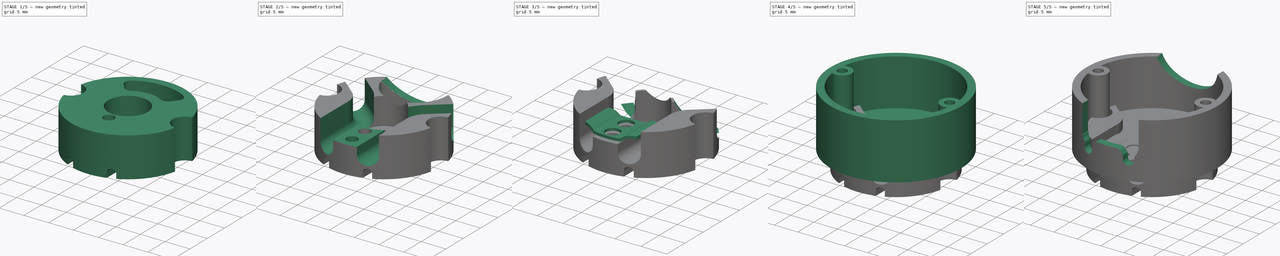
[diagram: build sequence overview — one tinted view per stage of 5, left to right]
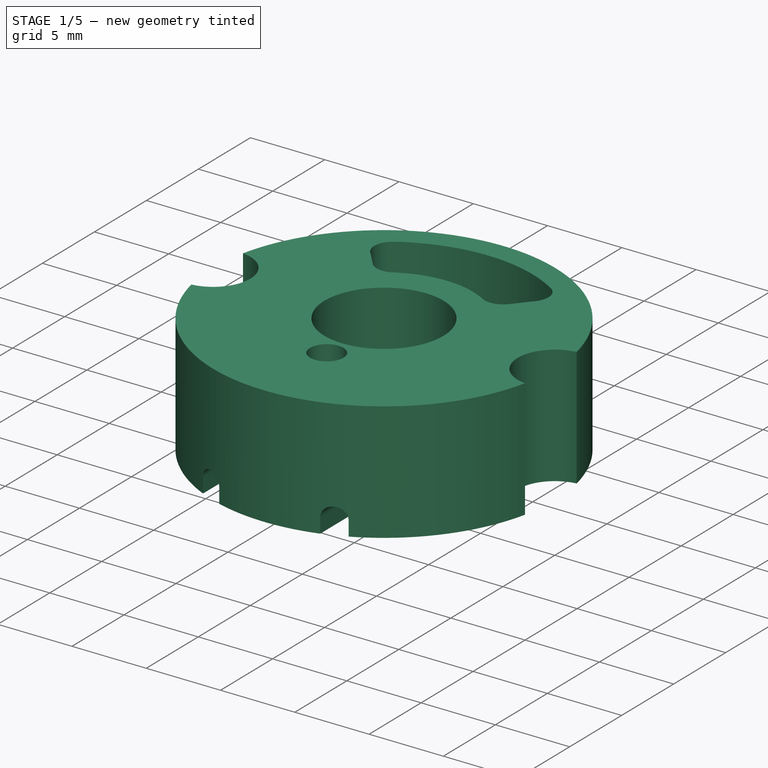
[diagram: stage 1 of 5 — iso view after this stage's code; geometry added in this stage tinted green]
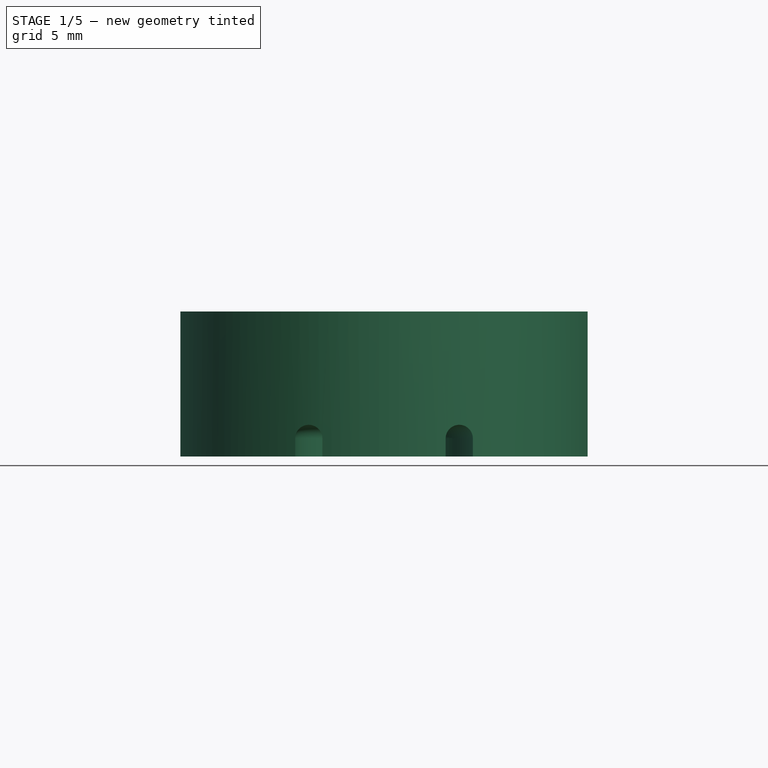
[diagram: stage 1 of 5 — front view after this stage's code; geometry added in this stage tinted green]
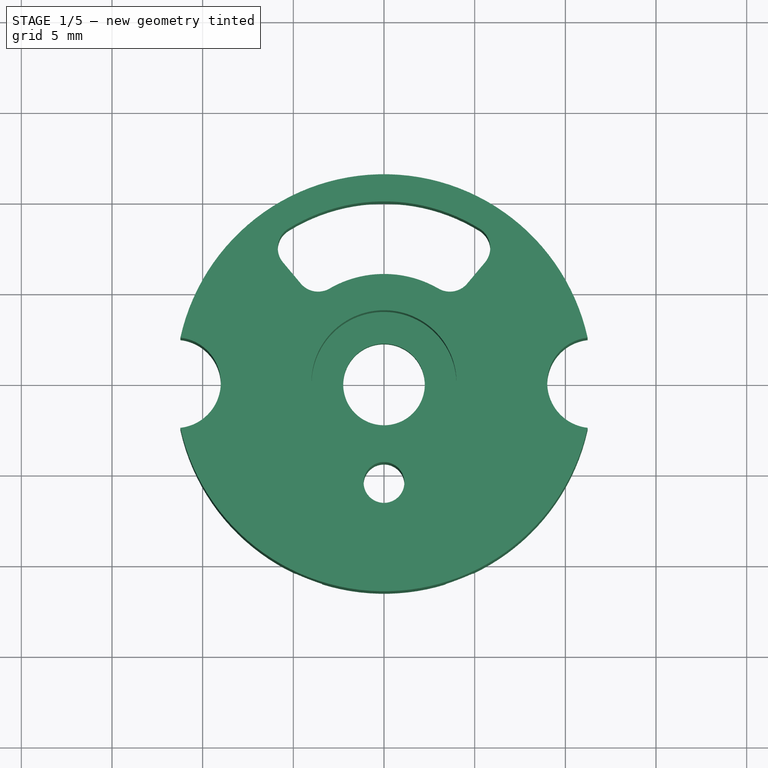
[diagram: stage 1 of 5 — top view after this stage's code; geometry added in this stage tinted green]
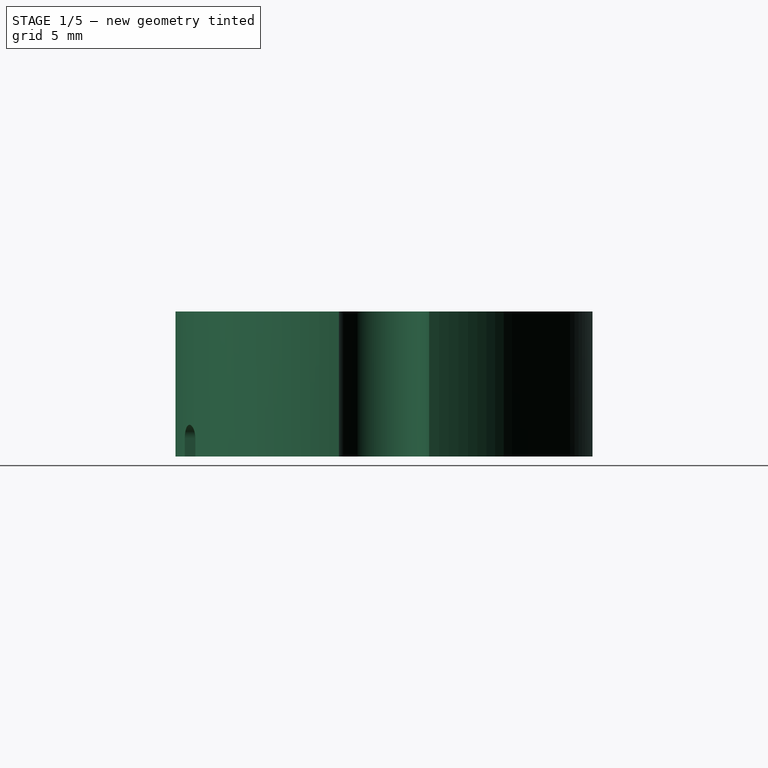
[diagram: stage 1 of 5 — right view after this stage's code; geometry added in this stage tinted green]
FCSTD DOCUMENT  (FreeCAD 0.20R29603 (Git))
Label: AKG K171 mkII Replacement arc holder
License: All rights reserved
LicenseURL: http://en.wikipedia.org/wiki/All_rights_reserved
objects: Sketcher::SketchObject×24, PartDesign::Pocket×13, PartDesign::Plane×5, PartDesign::Pad×4, PartDesign::Body×3, PartDesign::SubtractivePipe×3, PartDesign::Mirrored×2, PartDesign::Fillet×2, PartDesign::Groove×1
note: 80 computed .brp shape members not serialized (recipe doc carries the construction recipe); baked Part::Feature solids carry a one-line shape summary decoded from their .brp

FEATURE [PartDesign::Body] Body  label="Holder lower interface (dummy piece)"
  Group = -> [Sketch,Pad,Sketch001,Pocket,Sketch002,Pocket001,Sketch003,Pad001,Sketch004,Pocket002,Sketch005,Pocket003,Sketch006,Pocket004,Sketch007,Pocket005,Mirrored,Fillet]
  Origin = -> Origin
  Placement = pos=(0,0,-6) rot=(0,0,1;0rad)
  Tip = -> Fillet
FEATURE [Sketcher::SketchObject] Sketch008
  FullyConstrained = true
  MapMode = 5
  Support = -> [XY_Plane001]
  sketch-geometry (2):
    g0: Circle CenterX=0 CenterY=0 CenterZ=0 NormalX=0 NormalY=0 NormalZ=1 AngleXU=0 Radius=11.5
    g1: Circle CenterX=0 CenterY=0 CenterZ=0 NormalX=0 NormalY=0 NormalZ=1 AngleXU=0 Radius=2.25
  constraints (4):
    c: Coincident(g0,g-1)
    c: Diameter(g0) = 23
    c: Coincident(g1,g0)
    c: Diameter(g1) = 4.5
FEATURE [PartDesign::Pad] Pad002  label="MainBodyExtrusion"
  Direction = (0,0,1)
  Length = 8
  Length2 = 10
  Profile = -> Sketch008
  ReferenceAxis = -> Sketch008 [N_Axis]
  Type = 0
FEATURE [Sketcher::SketchObject] Sketch009
  FullyConstrained = true
  MapMode = 5
  Placement = pos=(0,0,8) rot=(0,0,1;0rad)
  Support = -> [Pad002]
  sketch-geometry (2):
    g0: Circle CenterX=11.5 CenterY=0 CenterZ=0 NormalX=0 NormalY=0 NormalZ=1 AngleXU=0 Radius=2.5
    g1: Circle CenterX=-11.5 CenterY=0 CenterZ=0 NormalX=0 NormalY=0 NormalZ=1 AngleXU=0 Radius=2.5
  constraints (6):
    c: PointOnObject(g0,g-1)
    c: DistanceX(g-1,g0) = 11.5
    c: Diameter(g0) = 5
    c: Diameter(g1) = 5
    c: PointOnObject(g1,g-1)
    c: DistanceX(g1,g-1) = 11.5
FEATURE [PartDesign::Pocket] Pocket006  label="SideLockersPocket"
  BaseFeature = -> Pad002
  Direction = (0,0,-1)
  Length = 10
  Length2 = 5
  Profile = -> Sketch009
  ReferenceAxis = -> Sketch009 [N_Axis]
  Type = 0
FEATURE [Sketcher::SketchObject] Sketch010
  FullyConstrained = true
  MapMode = 5
  Placement = pos=(0,0,8) rot=(0,0,1;0rad)
  Support = -> [Pocket006]
  sketch-geometry (1):
    g0: Circle CenterX=0 CenterY=0 CenterZ=0 NormalX=0 NormalY=0 NormalZ=1 AngleXU=0 Radius=4
  constraints (2):
    c: Coincident(g0,g-1)
    c: Diameter(g0) = 8
FEATURE [PartDesign::Pocket] Pocket007  label="MainScrewPocket"
  BaseFeature = -> Pocket006
  Direction = (0,0,-1)
  Length = 5.5
  Length2 = 5
  Profile = -> Sketch010
  ReferenceAxis = -> Sketch010 [N_Axis]
  Type = 0
FEATURE [Sketcher::SketchObject] Sketch012
  FullyConstrained = false
  MapMode = 5
  Support = -> [XY_Plane001]
  sketch-geometry (13):
    g0: Circle CenterX=0 CenterY=-5.5 CenterZ=0 NormalX=0 NormalY=0 NormalZ=1 AngleXU=0 Radius=1.125
    g1: ArcOfCircle CenterX=0 CenterY=0 CenterZ=0 NormalX=0 NormalY=0 NormalZ=1 AngleXU=0 Radius=10 StartAngle=1.01601 EndAngle=2.12558
    g2: ArcOfCircle CenterX=0 CenterY=0 CenterZ=0 NormalX=0 NormalY=0 NormalZ=1 AngleXU=0 Radius=6 StartAngle=1.04594 EndAngle=2.09565
    g3: LineSegment StartX=-5.5667 StartY=6.63414 StartZ=0 EndX=-4.59042 EndY=5.47065 EndZ=0
    g4: LineSegment StartX=4.59042 StartY=5.47065 StartZ=0 EndX=5.5667 EndY=6.63414 EndZ=0
    g5: LineSegment StartX=-13.3216 StartY=15.8761 StartZ=0 EndX=0 EndY=0 EndZ=0
    g6: LineSegment StartX=0 StartY=0 StartZ=0 EndX=11.7863 EndY=14.0463 EndZ=0
    g7: ArcOfCircle CenterX=-4.60915 CenterY=7.43762 CenterZ=0 NormalX=0 NormalY=0 NormalZ=1 AngleXU=0 Radius=1.25 StartAngle=2.12558 EndAngle=3.83972
    g8: ArcOfCircle CenterX=4.60915 CenterY=7.43762 CenterZ=0 NormalX=0 NormalY=0 NormalZ=1 AngleXU=0 Radius=1.25 StartAngle=5.58505 EndAngle=7.2992
    g9: ArcOfCircle CenterX=3.63287 CenterY=6.27414 CenterZ=0 NormalX=0 NormalY=0 NormalZ=1 AngleXU=0 Radius=1.25 StartAngle=4.18754 EndAngle=5.58505
    g10: ArcOfCircle CenterX=-3.63287 CenterY=6.27414 CenterZ=0 NormalX=0 NormalY=0 NormalZ=1 AngleXU=0 Radius=1.25 StartAngle=3.83972 EndAngle=5.23724
    g11: GeomPoint X=0 Y=6 Z=0
    g12: GeomPoint X=0 Y=10 Z=0
  constraints (31):
    c: PointOnObject(g0,g-2)
    c: Diameter(g0) = 2.25
    c: Coincident(g1,g-1)
    c: Coincident(g2,g1)
    c: Coincident(g5,g1)
    c: Coincident(g6,g1)
    c: DistanceY(g0,g1) = 5.5
    c: Tangent(g1,g7) = -1.5708
    c: Tangent(g3,g7) = -1.5708
    c: Tangent(g1,g8) = -1.5708
    c: Tangent(g4,g8) = -1.5708
    c: Tangent(g2,g9) = 1.5708
    c: Tangent(g4,g9) = -1.5708
    c: Tangent(g3,g10) = -1.5708
    c: Tangent(g2,g10) = 1.5708
    c: Parallel(g3,g5)
    c: PointOnObject(g3,g5)
    c: PointOnObject(g4,g6)
    c: PointOnObject(g4,g6)
    c: Angle(g6,g-2) = 0.698132
    c: Angle(g-2,g5) = 0.698132
    c: Diameter(g8) = 2.5
    c: Diameter(g9) = 2.5
    c: Diameter(g10) = 2.5
    c: Diameter(g7) = 2.5
    c: PointOnObject(g11,g-2)
    c: PointOnObject(g12,g-2)
    c: PointOnObject(g12,g1)
    c: PointOnObject(g11,g2)
    c: DistanceY(g11,g12) = 4
    c: DistanceY(g1,g11) = 6
FEATURE [PartDesign::Pocket] Pocket009  label="WiresSocket"
  BaseFeature = -> Pocket007
  Direction = (0,0,-1)
  Length = 12
  Length2 = 5
  Profile = -> Sketch012
  ReferenceAxis = -> Sketch012 [N_Axis]
  Reversed = true
  Type = 0
FEATURE [Sketcher::SketchObject] Sketch016  label="Substractive path"
  FullyConstrained = true
  MapMode = 5
  Support = -> [XY_Plane001]
  sketch-geometry (4):
    g0: ArcOfCircle CenterX=0 CenterY=0 CenterZ=0 NormalX=0 NormalY=0 NormalZ=1 AngleXU=0 Radius=4 StartAngle=0 EndAngle=3.14159
    g1: LineSegment StartX=4 StartY=0 StartZ=0 EndX=4 EndY=-13 EndZ=0
    g2: LineSegment StartX=-4 StartY=2.883e-13 StartZ=0 EndX=-4 EndY=-13 EndZ=0
    g3: LineSegment StartX=4 StartY=-13 StartZ=0 EndX=-4 EndY=-13 EndZ=0
  constraints (10):
    c: Coincident(g-1,g0)
    c: Coincident(g3,g1)
    c: Coincident(g2,g3)
    c: Perpendicular(g1,g3)
    c: Perpendicular(g2,g3)
    c: Diameter(g0) = 8
    c: Tangent(g2,g0) = -1.5708
    c: Tangent(g1,g0) = 1.5708
    c: Vertical(g1)
    c: DistanceY(g1,g0) = 13
FEATURE [Sketcher::SketchObject] Sketch019
  FullyConstrained = true
  MapMode = 5
  Support = -> [XY_Plane001]
  sketch-geometry (1):
    g0: Circle CenterX=0 CenterY=-9.2 CenterZ=0 NormalX=0 NormalY=0 NormalZ=1 AngleXU=0 Radius=1.125
  constraints (3):
    c: PointOnObject(g0,g-2)
    c: Diameter(g0) = 2.25
    c: DistanceY(g0,g-1) = 9.2
FEATURE [PartDesign::Plane] DatumPlane  label="Cut profile plane"
  AttachmentOffset = pos=(0,0,13) rot=(0,0,1;0rad)
  Length = 60
  MapMode = 5
  Placement = pos=(0,-13,-2.9e-15) rot=(1,0,0;1.5708rad)
  ResizeMode = 0
  Support = -> [XZ_Plane001]
  Width = 60
FEATURE [Sketcher::SketchObject] Sketch018  label="Cut profile"
  ExternalGeometry = -> [Sketch016]
  FullyConstrained = true
  MapMode = 5
  Placement = pos=(0,-13,-2.9e-15) rot=(1,0,0;1.5708rad)
  Support = -> [DatumPlane]
  sketch-geometry (4):
    g0: ArcOfCircle CenterX=-4.15 CenterY=1 CenterZ=0 NormalX=0 NormalY=0 NormalZ=1 AngleXU=0 Radius=0.75 StartAngle=-1.90346e-11 EndAngle=3.14159
    g1: ArcOfCircle CenterX=-4.15 CenterY=-2 CenterZ=0 NormalX=0 NormalY=0 NormalZ=1 AngleXU=0 Radius=0.75 StartAngle=3.14159 EndAngle=6.28319
    g2: LineSegment StartX=-4.9 StartY=1 StartZ=0 EndX=-4.9 EndY=-2 EndZ=0
    g3: LineSegment StartX=-3.4 StartY=-2 StartZ=0 EndX=-3.4 EndY=1 EndZ=0
  constraints (10):
    c: Tangent(g0,g2) = -1.5708
    c: Tangent(g2,g1) = -1.5708
    c: Tangent(g1,g3) = -1.5708
    c: Tangent(g3,g0) = -1.5708
    c: Equal(g0,g1)
    c: Vertical(g2)
    c: DistanceY(g-3,g0) = 1
    c: Diameter(g0) = 1.5
    c: DistanceX(g0,g-1) = 4.15
    c: DistanceY(g3,g3) = 3
FEATURE [PartDesign::SubtractivePipe] SubtractivePipe  label="ElasticBandGroove"
  AuxilleryCurvelinear = true
  AuxillerySpineTangent = false
  BaseFeature = -> Pocket009
  Binormal = (0,0,0)
  Mode = 0
  Profile = -> Sketch018
  Spine = -> Sketch016
  SpineTangent = false
  Transformation = 0
  Transition = 0
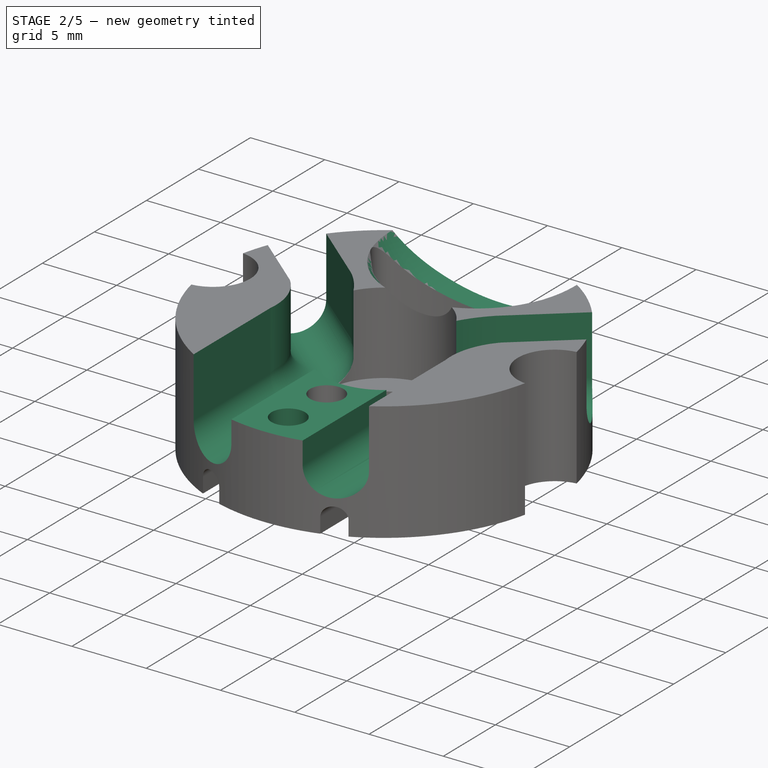
[diagram: stage 2 of 5 — iso view after this stage's code; geometry added in this stage tinted green]
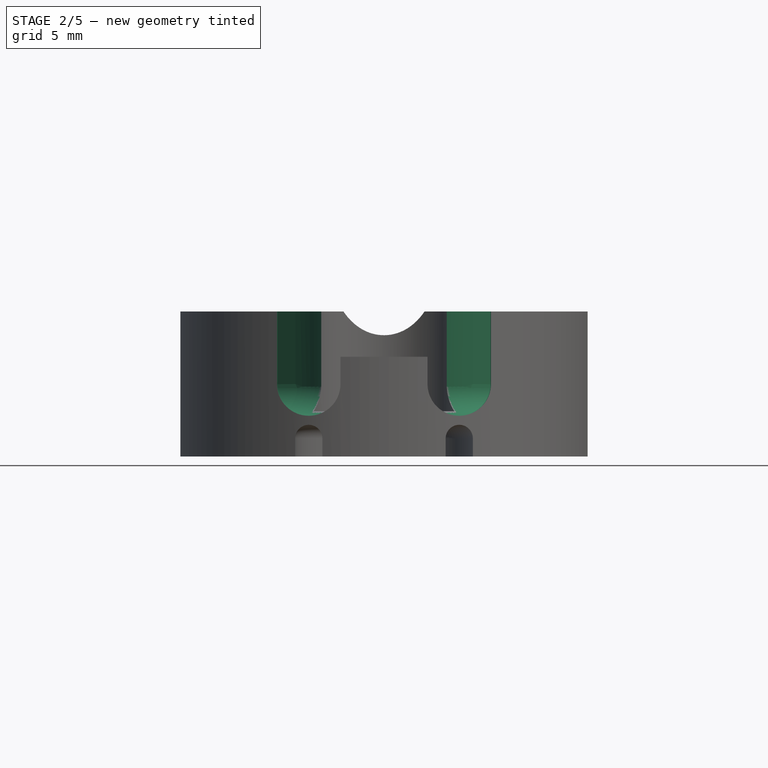
[diagram: stage 2 of 5 — front view after this stage's code; geometry added in this stage tinted green]
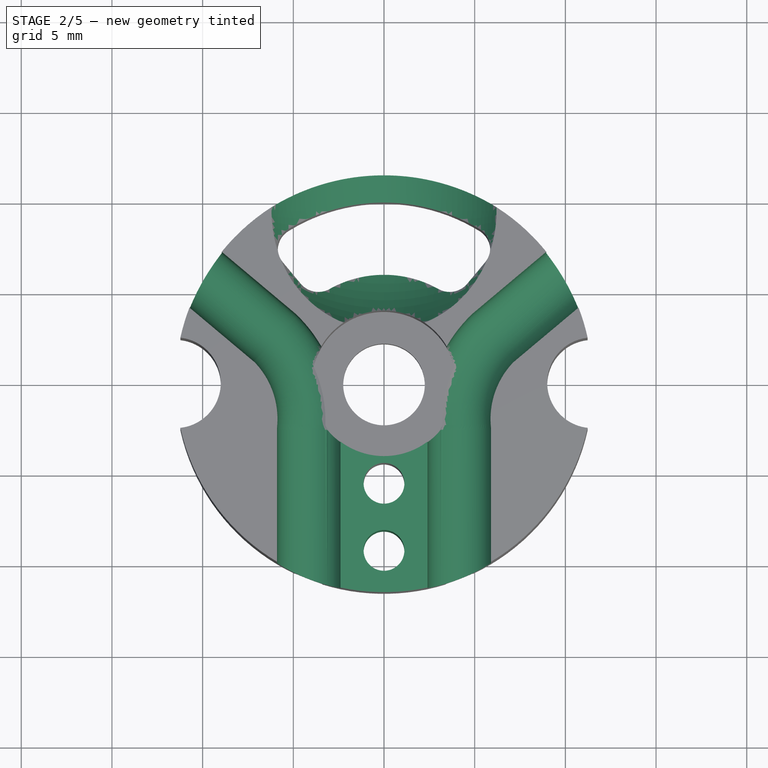
[diagram: stage 2 of 5 — top view after this stage's code; geometry added in this stage tinted green]
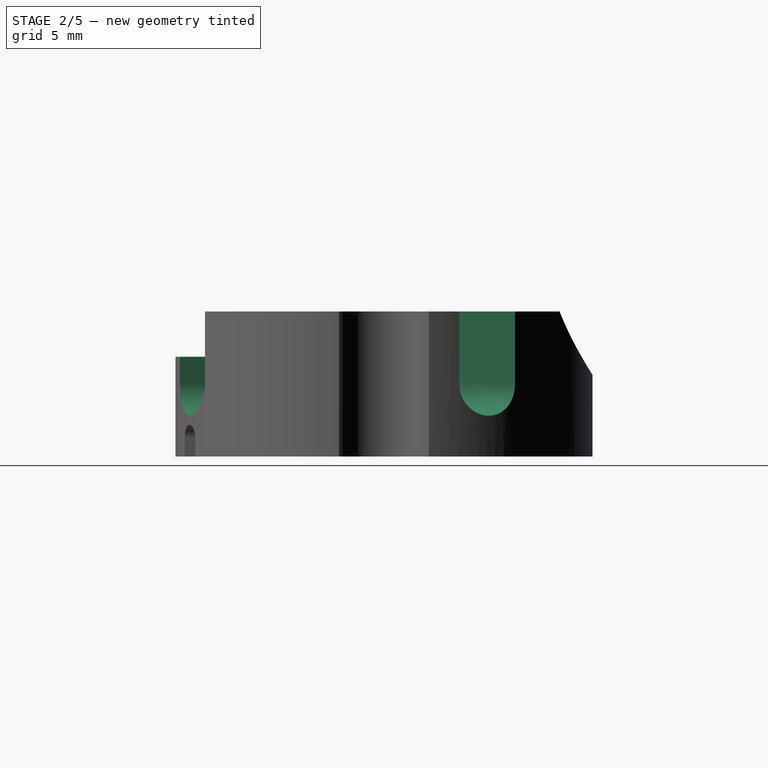
[diagram: stage 2 of 5 — right view after this stage's code; geometry added in this stage tinted green]
FEATURE [PartDesign::Pocket] Pocket018  label="ClampHole"
  BaseFeature = -> SubtractivePipe
  Direction = (0,0,-1)
  Length = 20
  Length2 = 5
  Profile = -> Sketch019
  ReferenceAxis = -> Sketch019 [N_Axis]
  Reversed = true
  Type = 0
FEATURE [Sketcher::SketchObject] Sketch030
  FullyConstrained = true
  MapMode = 5
  Placement = pos=(0,-13,-2.9e-15) rot=(1,0,0;1.5708rad)
  Support = -> [DatumPlane]
  sketch-geometry (5):
    g0: ArcOfCircle CenterX=-4.15 CenterY=4 CenterZ=0 NormalX=0 NormalY=0 NormalZ=1 AngleXU=0 Radius=1.75 StartAngle=3.14159 EndAngle=6.28319
    g1: LineSegment StartX=-5.9 StartY=9 StartZ=0 EndX=-2.4 EndY=9 EndZ=0
    g2: LineSegment StartX=-2.4 StartY=9 StartZ=0 EndX=-2.4 EndY=4 EndZ=0
    g3: LineSegment StartX=-2.4 StartY=4 StartZ=0 EndX=-5.9 EndY=4 EndZ=0
    g4: LineSegment StartX=-5.9 StartY=4 StartZ=0 EndX=-5.9 EndY=9 EndZ=0
  constraints (15):
    c: Diameter(g0) = 3.5
    c: DistanceY(g-1,g0) = 4
    c: DistanceX(g0,g-1) = 4.15
    c: Coincident(g1,g2)
    c: Coincident(g2,g3)
    c: Coincident(g3,g4)
    c: Coincident(g4,g1)
    c: Horizontal(g1)
    c: Horizontal(g3)
    c: Vertical(g2)
    c: Vertical(g4)
    c: PointOnObject(g0,g3)
    c: DistanceY(g2,g2) = 5
    c: Coincident(g0,g2)
    c: Coincident(g0,g3)
FEATURE [Sketcher::SketchObject] Sketch032
  FullyConstrained = true
  MapMode = 5
  Support = -> [XY_Plane001]
  sketch-geometry (3):
    g0: LineSegment StartX=-4.15 StartY=-12.5 StartZ=0 EndX=-4.15 EndY=-2 EndZ=0
    g1: LineSegment StartX=-6.38258 StartY=2.78778 StartZ=0 EndX=-12 EndY=7.50135 EndZ=0
    g2: ArcOfCircle CenterX=-10.4 CenterY=-2 CenterZ=0 NormalX=0 NormalY=0 NormalZ=1 AngleXU=0 Radius=6.25 StartAngle=0 EndAngle=0.872665
  constraints (9):
    c: Vertical(g0)
    c: DistanceX(g0,g-1) = 4.15
    c: Angle(g1,g0) = 2.26893
    c: Tangent(g1,g2) = -1.5708
    c: Tangent(g0,g2) = -1.5708
    c: Diameter(g2) = 12.5
    c: DistanceY(g0,g-1) = 12.5
    c: DistanceY(g0,g0) = 10.5
    c: DistanceX(g1,g-1) = 12
FEATURE [PartDesign::SubtractivePipe] SubtractivePipe001
  AuxilleryCurvelinear = true
  AuxillerySpineTangent = false
  BaseFeature = -> Pocket018
  Binormal = (0,0,0)
  Mode = 0
  Profile = -> Sketch030
  Spine = -> Sketch032 [Edge1,Edge2,Edge3]
  SpineTangent = false
  Transformation = 0
  Transition = 0
FEATURE [PartDesign::Mirrored] Mirrored001
  BaseFeature = -> SubtractivePipe001
  MirrorPlane = -> Sketch030 [V_Axis]
  Originals = -> [SubtractivePipe001]
FEATURE [Sketcher::SketchObject] Sketch033  label="SubstractivePath"
  FullyConstrained = true
  MapMode = 5
  Placement = pos=(0,0,0) rot=(0.57735,0.57735,0.57735;2.0944rad)
  Support = -> [YZ_Plane001]
  sketch-geometry (3):
    g0: LineSegment StartX=9.5 StartY=5 StartZ=0 EndX=15 EndY=5 EndZ=0
    g1: LineSegment StartX=2 StartY=18 StartZ=0 EndX=2 EndY=12.5 EndZ=0
    g2: ArcOfCircle CenterX=9.5 CenterY=12.5 CenterZ=0 NormalX=0 NormalY=0 NormalZ=1 AngleXU=0 Radius=7.5 StartAngle=3.14159 EndAngle=4.71239
  constraints (9):
    c: Horizontal(g0)
    c: Vertical(g1)
    c: Tangent(g2,g0) = -1.5708
    c: Tangent(g2,g1) = -1.5708
    c: DistanceX(g-1,g1) = 2
    c: DistanceY(g-1,g0) = 5
    c: Diameter(g2) = 15
    c: DistanceY(g-1,g1) = 18
    c: DistanceX(g-1,g0) = 15
FEATURE [PartDesign::Plane] DatumPlane001
  AttachmentOffset = pos=(0,0,-15) rot=(0,0,1;0rad)
  Length = 60
  MapMode = 5
  Placement = pos=(0,15,3.3e-15) rot=(1,0,0;1.5708rad)
  ResizeMode = 0
  Support = -> [XZ_Plane001]
  Width = 60
FEATURE [Sketcher::SketchObject] Sketch034  label="SweptHole"
  FullyConstrained = true
  MapMode = 5
  Placement = pos=(0,15,3.3e-15) rot=(1,0,0;1.5708rad)
  Support = -> [DatumPlane001]
  sketch-geometry (1):
    g0: Circle CenterX=0 CenterY=11.75 CenterZ=0 NormalX=0 NormalY=0 NormalZ=1 AngleXU=0 Radius=7.25
  constraints (3):
    c: PointOnObject(g0,g-2)
    c: Diameter(g0) = 14.5
    c: DistanceY(g-1,g0) = 11.75
FEATURE [PartDesign::SubtractivePipe] SubtractivePipe002
  AuxilleryCurvelinear = true
  AuxillerySpineTangent = false
  BaseFeature = -> Mirrored001
  Binormal = (0,0,0)
  Mode = 0
  Profile = -> Sketch034 [Edge1]
  Spine = -> Sketch033
  SpineTangent = false
  Transformation = 0
  Transition = 0
FEATURE [PartDesign::Plane] DatumPlane002  label="TopPlane"
  AttachmentOffset = pos=(0,0,10) rot=(0,0,1;0rad)
  Length = 60
  MapMode = 5
  Placement = pos=(0,0,10) rot=(0,0,1;0rad)
  ResizeMode = 0
  Support = -> [XY_Plane001]
  Width = 60
FEATURE [Sketcher::SketchObject] Sketch035
  FullyConstrained = true
  MapMode = 5
  Placement = pos=(0,0,10) rot=(0,0,1;0rad)
  Support = -> [DatumPlane002]
  sketch-geometry (4):
    g0: LineSegment StartX=-2.75 StartY=-2 StartZ=0 EndX=2.75 EndY=-2 EndZ=0
    g1: LineSegment StartX=2.75 StartY=-2 StartZ=0 EndX=2.75 EndY=-14 EndZ=0
    g2: LineSegment StartX=2.75 StartY=-14 StartZ=0 EndX=-2.75 EndY=-14 EndZ=0
    g3: LineSegment StartX=-2.75 StartY=-14 StartZ=0 EndX=-2.75 EndY=-2 EndZ=0
  constraints (12):
    c: Coincident(g0,g1)
    c: Coincident(g1,g2)
    c: Coincident(g2,g3)
    c: Coincident(g3,g0)
    c: Horizontal(g0)
    c: Horizontal(g2)
    c: Vertical(g1)
    c: Vertical(g3)
    c: DistanceX(g0,g0) = 5.5
    c: DistanceX(g0,g-1) = 2.75
    c: DistanceY(g0,g-1) = 2
    c: DistanceY(g1,g1) = 12
FEATURE [PartDesign::Pocket] Pocket019  label="TopPlatePocket"
  BaseFeature = -> SubtractivePipe002
  Direction = (0,0,-1)
  Length = 4.5
  Length2 = 5
  Profile = -> Sketch035
  ReferenceAxis = -> Sketch035 [N_Axis]
  Type = 0
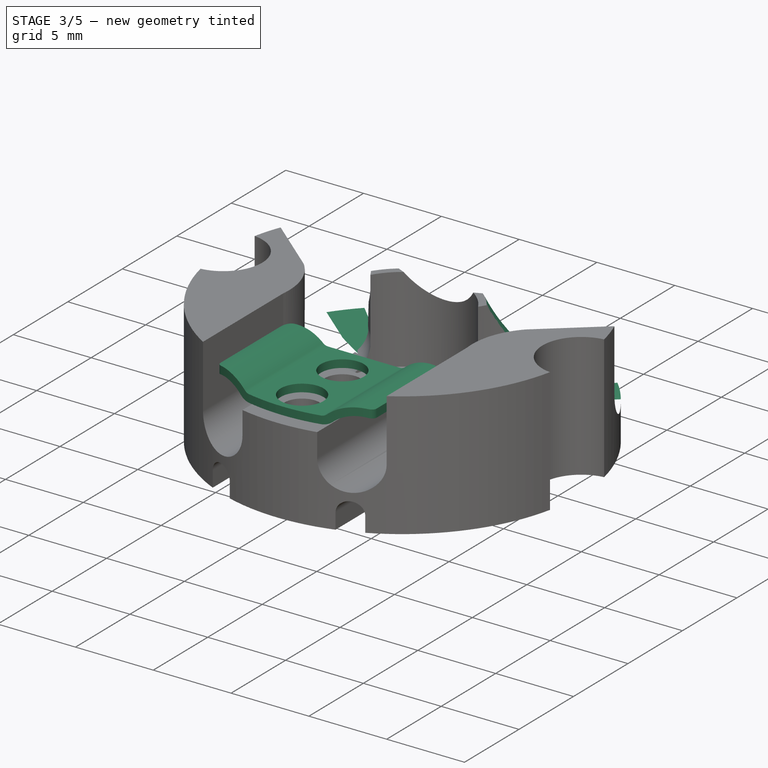
[diagram: stage 3 of 5 — iso view after this stage's code; geometry added in this stage tinted green]
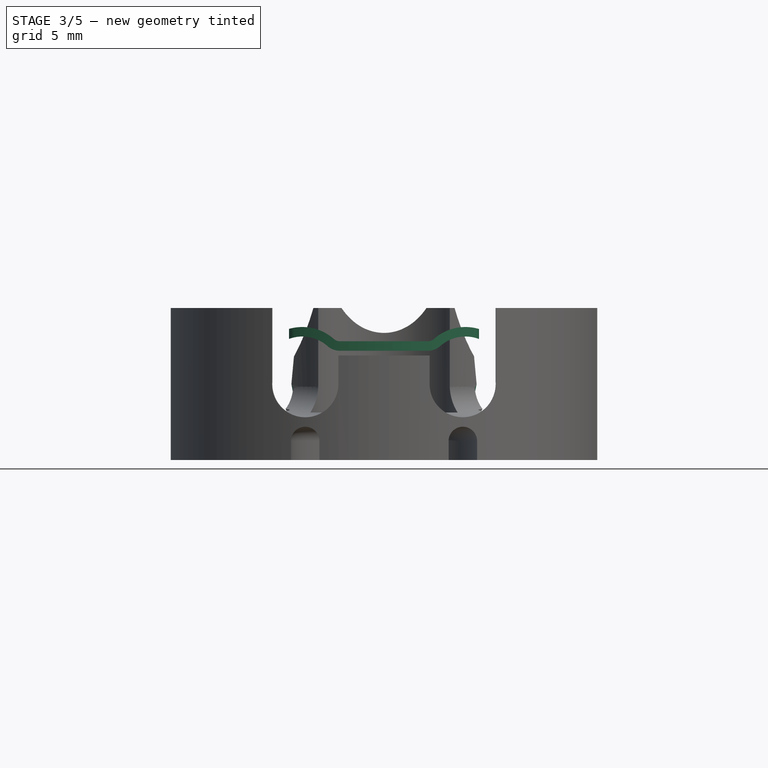
[diagram: stage 3 of 5 — front view after this stage's code; geometry added in this stage tinted green]
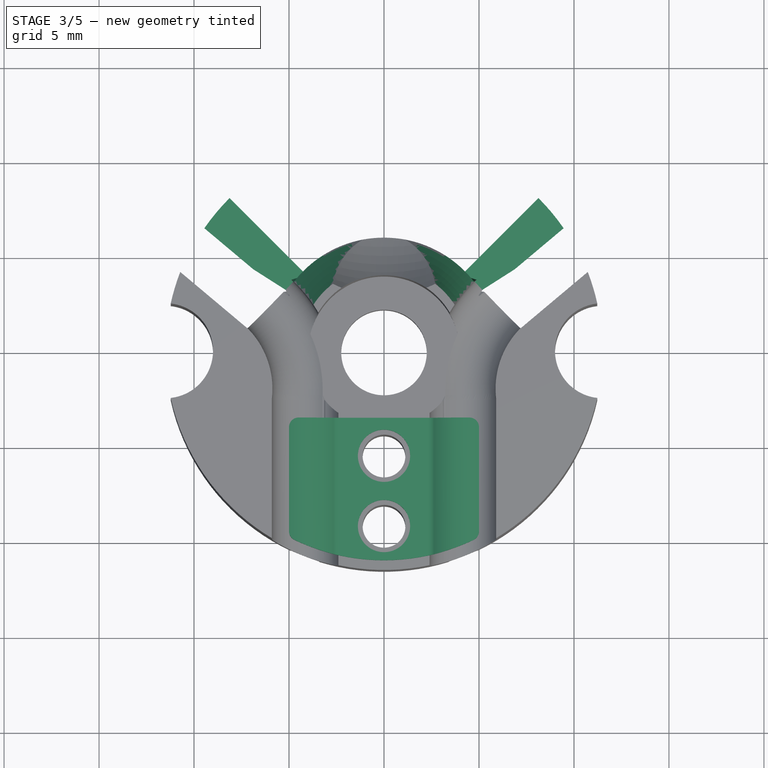
[diagram: stage 3 of 5 — top view after this stage's code; geometry added in this stage tinted green]
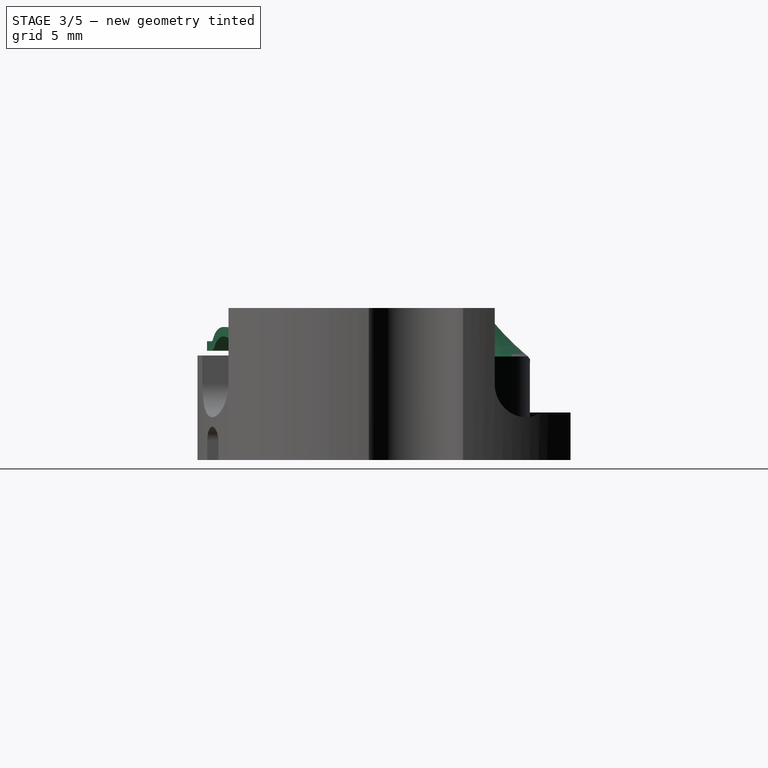
[diagram: stage 3 of 5 — right view after this stage's code; geometry added in this stage tinted green]
FEATURE [PartDesign::Plane] DatumPlane003
  AttachmentOffset = pos=(0,0,11) rot=(0,0,1;0rad)
  Length = 60
  MapMode = 5
  Placement = pos=(0,-11,-2.4e-15) rot=(1,0,0;1.5708rad)
  ResizeMode = 0
  Support = -> [XZ_Plane002]
  Width = 60
FEATURE [Sketcher::SketchObject] Sketch036
  FullyConstrained = false
  MapMode = 5
  Placement = pos=(0,-11,-2.4e-15) rot=(1,0,0;1.5708rad)
  Support = -> [DatumPlane003]
  sketch-geometry (18):
    g0: ArcOfCircle CenterX=-4.3 CenterY=4.5 CenterZ=0 NormalX=0 NormalY=0 NormalZ=1 AngleXU=0 Radius=2 StartAngle=0.848062 EndAngle=2.35619
    g1: LineSegment StartX=-4.94493 StartY=6.5 StartZ=0 EndX=6.517 EndY=6.5 EndZ=0
    g2: LineSegment StartX=-2.31569 StartY=5.75 StartZ=0 EndX=0 EndY=5.75 EndZ=0
    g3: LineSegment StartX=-5.71421 StartY=5.91421 StartZ=0 EndX=-4.3 EndY=4.5 EndZ=0
    g4: LineSegment StartX=-4.3 StartY=4.5 StartZ=0 EndX=-4.3 EndY=9.78631 EndZ=0
    g5: ArcOfCircle CenterX=-2.31569 CenterY=6.75 CenterZ=0 NormalX=0 NormalY=0 NormalZ=1 AngleXU=0 Radius=1 StartAngle=3.98965 EndAngle=4.71239
    g6: ArcOfCircle CenterX=4.28431 CenterY=4.5 CenterZ=0 NormalX=0 NormalY=0 NormalZ=1 AngleXU=0 Radius=2 StartAngle=0.785398 EndAngle=2.29353
    g7: LineSegment StartX=2.3 StartY=5.75 StartZ=0 EndX=0 EndY=5.75 EndZ=0
    g8: ArcOfCircle CenterX=2.3 CenterY=6.75 CenterZ=0 NormalX=0 NormalY=0 NormalZ=1 AngleXU=0 Radius=1 StartAngle=4.71239 EndAngle=5.43512
    g9: LineSegment StartX=4.28431 StartY=4.5 StartZ=0 EndX=5.69853 EndY=5.91421 EndZ=0
    g10: LineSegment StartX=4.28431 StartY=4.5 StartZ=0 EndX=4.28431 EndY=8.60442 EndZ=0
    g11: ArcOfCircle CenterX=-4.3 CenterY=4.5 CenterZ=0 NormalX=0 NormalY=0 NormalZ=1 AngleXU=0 Radius=2.5 StartAngle=0.848062 EndAngle=2.35619
    g12: LineSegment StartX=-6.06777 StartY=6.26777 StartZ=0 EndX=-5.71421 EndY=5.91421 EndZ=0
    g13: ArcOfCircle CenterX=-2.31569 CenterY=6.75 CenterZ=0 NormalX=0 NormalY=0 NormalZ=1 AngleXU=0 Radius=0.5 StartAngle=3.98965 EndAngle=4.71239
    g14: LineSegment StartX=-2.31569 StartY=6.25 StartZ=0 EndX=2.30001 EndY=6.25 EndZ=0
    g15: ArcOfCircle CenterX=2.3 CenterY=6.75 CenterZ=0 NormalX=0 NormalY=0 NormalZ=1 AngleXU=0 Radius=0.5 StartAngle=4.7124 EndAngle=5.43512
    g16: ArcOfCircle CenterX=4.28431 CenterY=4.5 CenterZ=0 NormalX=0 NormalY=0 NormalZ=1 AngleXU=0 Radius=2.5 StartAngle=0.785398 EndAngle=2.29353
    g17: LineSegment StartX=6.05208 StartY=6.26777 StartZ=0 EndX=5.69853 EndY=5.91421 EndZ=0
  constraints (46):
    c: Horizontal(g1)
    c: Tangent(g0,g1)
    c: DistanceX(g0,g-1) = 4.3
    c: Diameter(g0) = 4
    c: PointOnObject(g2,g-2)
    c: Horizontal(g2)
    c: Coincident(g3,g0)
    c: Coincident(g3,g0)
    c: Coincident(g4,g0)
    c: Vertical(g4)
    c: Angle(g4,g3) = 0.785398
    c: Tangent(g0,g5) = 1.5708
    c: Tangent(g2,g5) = -1.5708
    c: Diameter(g5) = 2
    c: DistanceY(g-1,g2) = 5.75
    c: DistanceY(g-1,g0) = 4.5
    c: Diameter(g6) = 4
    c: Horizontal(g7)
    c: Tangent(g6,g8) = 1.5708
    c: Tangent(g7,g8) = 1.5708
    c: Diameter(g8) = 2
    c: Coincident(g2,g7)
    c: DistanceX(g-1,g7) = 2.3
    c: Coincident(g9,g6)
    c: Coincident(g9,g6)
    c: Coincident(g10,g6)
    c: Vertical(g10)
    c: Angle(g9,g10) = 0.785398
    c: DistanceY(g-1,g6) = 4.5
    c: Coincident(g0,g11)
    c: Coincident(g12,g11)
    c: Coincident(g12,g0)
    c: Parallel(g12,g3)
    c: Coincident(g13,g5)
    c: Tangent(g13,g11) = 1.5708
    c: Horizontal(g14)
    c: Coincident(g15,g8)
    c: Coincident(g15,g14)
    c: Coincident(g16,g6)
    c: Coincident(g17,g16)
    c: Coincident(g17,g6)
    c: Parallel(g17,g9)
    c: Tangent(g16,g15) = 1.5708
    c: Distance(g17) = 0.5
    c: Tangent(g14,g13) = -1.5708
    c: DistanceY(g2,g13) = 0.5
FEATURE [PartDesign::Plane] DatumPlane004
  AttachmentOffset = pos=(0,0,3.5) rot=(0,0,1;0rad)
  Length = 60
  MapMode = 5
  Placement = pos=(0,-3.5,-8e-16) rot=(1,0,0;1.5708rad)
  ResizeMode = 0
  Support = -> [XZ_Plane002]
  Width = 60
FEATURE [PartDesign::Pad] Pad003
  Direction = (0,-1,2e-16)
  Length = 7.5
  Length2 = 10
  Placement = pos=(0,-11,2e-15) rot=(1,0,0;1.5708rad)
  Profile = -> Sketch036
  ReferenceAxis = -> Sketch036 [N_Axis]
  Reversed = true
  Type = 0
FEATURE [Sketcher::SketchObject] Sketch037
  FullyConstrained = false
  MapMode = 5
  Support = -> [XY_Plane002]
  sketch-geometry (14):
    g0: ArcOfCircle CenterX=0 CenterY=0 CenterZ=0 NormalX=0 NormalY=0 NormalZ=1 AngleXU=0 Radius=11 StartAngle=4.26948 EndAngle=5.1553
    g1: LineSegment StartX=5 StartY=-9.48683 StartZ=0 EndX=5 EndY=-3 EndZ=0
    g2: LineSegment StartX=4.5 StartY=-2.5 StartZ=0 EndX=-4.5 EndY=-2.5 EndZ=0
    g3: LineSegment StartX=-5 StartY=-3 StartZ=0 EndX=-5 EndY=-9.48683 EndZ=0
    g4: Circle CenterX=0 CenterY=-5.5 CenterZ=0 NormalX=0 NormalY=0 NormalZ=1 AngleXU=0 Radius=1.375
    g5: Circle CenterX=0 CenterY=-9.2 CenterZ=0 NormalX=0 NormalY=0 NormalZ=1 AngleXU=0 Radius=1.375
    g6: LineSegment StartX=-7.08742 StartY=-1.13863 StartZ=0 EndX=6.64829 EndY=-1.13863 EndZ=0
    g7: LineSegment StartX=6.64829 StartY=-1.13863 StartZ=0 EndX=6.64829 EndY=-12.185 EndZ=0
    g8: LineSegment StartX=6.64829 StartY=-12.185 StartZ=0 EndX=-7.08742 EndY=-12.185 EndZ=0
    g9: LineSegment StartX=-7.08742 StartY=-12.185 StartZ=0 EndX=-7.08742 EndY=-1.13863 EndZ=0
    g10: ArcOfCircle CenterX=-4.5 CenterY=-9.48683 CenterZ=0 NormalX=0 NormalY=0 NormalZ=1 AngleXU=0 Radius=0.5 StartAngle=3.14159 EndAngle=4.26948
    g11: ArcOfCircle CenterX=4.5 CenterY=-9.48683 CenterZ=0 NormalX=0 NormalY=0 NormalZ=1 AngleXU=0 Radius=0.5 StartAngle=5.1553 EndAngle=6.28319
    g12: ArcOfCircle CenterX=4.5 CenterY=-3 CenterZ=0 NormalX=0 NormalY=0 NormalZ=1 AngleXU=0 Radius=0.5 StartAngle=0 EndAngle=1.5708
    g13: ArcOfCircle CenterX=-4.5 CenterY=-3 CenterZ=0 NormalX=0 NormalY=0 NormalZ=1 AngleXU=0 Radius=0.5 StartAngle=1.5708 EndAngle=3.14159
  constraints (34):
    c: Coincident(g0,g-1)
    c: Diameter(g0) = 22
    c: Horizontal(g2)
    c: Vertical(g1)
    c: Vertical(g3)
    c: PointOnObject(g4,g-2)
    c: PointOnObject(g5,g-2)
    c: DistanceY(g4,g0) = 5.5
    c: Diameter(g4) = 2.75
    c: DistanceY(g5,g0) = 9.2
    c: Diameter(g5) = 2.75
    c: Coincident(g6,g7)
    c: Coincident(g7,g8)
    c: Coincident(g8,g9)
    c: Coincident(g9,g6)
    c: Horizontal(g6)
    c: Horizontal(g8)
    c: Vertical(g7)
    c: Vertical(g9)
    c: Tangent(g3,g10) = -1.5708
    c: Tangent(g0,g10) = -1.5708
    c: Tangent(g0,g11) = -1.5708
    c: Tangent(g1,g11) = -1.5708
    c: Tangent(g2,g12) = -1.5708
    c: Tangent(g1,g12) = -1.5708
    c: Tangent(g2,g13) = -1.5708
    c: Tangent(g3,g13) = -1.5708
    c: Diameter(g13) = 1
    c: Diameter(g12) = 1
    c: Diameter(g10) = 1
    c: Diameter(g11) = 1
    c: DistanceX(g0,g1) = 5
    c: DistanceX(g3,g0) = 5
    c: DistanceY(g2,g0) = 2.5
FEATURE [PartDesign::Pocket] Pocket020  label="SheetFormer"
  BaseFeature = -> Pad003
  Direction = (0,0,-1)
  Length = 8
  Length2 = 5
  Placement = pos=(0,-11,2e-15) rot=(1,0,0;1.5708rad)
  Profile = -> Sketch037
  ReferenceAxis = -> Sketch037 [N_Axis]
  Reversed = true
  Type = 0
FEATURE [PartDesign::Fillet] Fillet001
  Base = -> Pocket020 [Edge27,Edge21]
  BaseFeature = -> Pocket020
  Placement = pos=(0,-11,2e-15) rot=(1,0,0;1.5708rad)
  Radius = 0.5
  SupportTransform = false
  UseAllEdges = false
FEATURE [PartDesign::Body] Body002  label="MetalClamp"
  Group = -> [DatumPlane003,Sketch036,DatumPlane004,Pad003,Sketch037,Pocket020,Fillet001]
  Origin = -> Origin002
  Tip = -> Fillet001
FEATURE [Sketcher::SketchObject] Sketch038
  FullyConstrained = true
  MapMode = 5
  Support = -> [XY_Plane001]
  sketch-geometry (6):
    g0: ArcOfCircle CenterX=0 CenterY=0 CenterZ=0 NormalX=0 NormalY=0 NormalZ=1 AngleXU=0 Radius=12.5 StartAngle=0.785398 EndAngle=2.35619
    g1: LineSegment StartX=-8.83883 StartY=8.83883 StartZ=0 EndX=0 EndY=0 EndZ=0
    g2: LineSegment StartX=0 StartY=0 StartZ=0 EndX=8.83883 EndY=8.83883 EndZ=0
    g3: LineSegment StartX=-8.83883 StartY=8.83883 StartZ=0 EndX=-4.24264 EndY=4.24264 EndZ=0
    g4: LineSegment StartX=8.83883 StartY=8.83883 StartZ=0 EndX=4.24264 EndY=4.24264 EndZ=0
    g5: ArcOfCircle CenterX=0 CenterY=0 CenterZ=0 NormalX=0 NormalY=0 NormalZ=1 AngleXU=0 Radius=6 StartAngle=0.785398 EndAngle=2.35619
  constraints (16):
    c: Coincident(g1,g0)
    c: Coincident(g1,g-1)
    c: Coincident(g2,g1)
    c: Coincident(g2,g0)
    c: Coincident(g3,g0)
    c: PointOnObject(g3,g1)
    c: Coincident(g4,g0)
    c: PointOnObject(g4,g2)
    c: Coincident(g5,g1)
    c: Coincident(g5,g3)
    c: Coincident(g4,g5)
    c: Diameter(g5) = 12
    c: Diameter(g0) = 25
    c: Angle(g-2,g1) = 0.785398
    c: Angle(g2,g-2) = 0.785398
    c: Coincident(g0,g1)
FEATURE [PartDesign::Pocket] Pocket021  label="WiresMainPocket"
  BaseFeature = -> Pocket019
  Direction = (0,0,-1)
  Length = 9
  Length2 = 5
  Profile = -> Sketch038
  ReferenceAxis = -> Sketch038 [N_Axis]
  Reversed = true
  Type = 0
FEATURE [Sketcher::SketchObject] Sketch039
  FullyConstrained = true
  MapMode = 5
  Placement = pos=(0,0,0) rot=(0.57735,0.57735,0.57735;2.0944rad)
  Support = -> [YZ_Plane001]
  sketch-geometry (5):
    g0: ArcOfCircle CenterX=17.0859 CenterY=14 CenterZ=0 NormalX=0 NormalY=0 NormalZ=1 AngleXU=0 Radius=14 StartAngle=3.29216 EndAngle=3.79855
    g1: LineSegment StartX=6 StartY=5.45 StartZ=0 EndX=6 EndY=2.5 EndZ=0
    g2: LineSegment StartX=6 StartY=2.5 StartZ=0 EndX=15.2443 EndY=2.5 EndZ=0
    g3: LineSegment StartX=15.2443 StartY=2.5 StartZ=0 EndX=15.2443 EndY=11.9 EndZ=0
    g4: LineSegment StartX=15.2443 StartY=11.9 StartZ=0 EndX=3.24431 EndY=11.9 EndZ=0
  constraints (16):
    c: Diameter(g0) = 28
    c: Coincident(g1,g0)
    c: Vertical(g1)
    c: Vertical(g3)
    c: Coincident(g4,g0)
    c: Horizontal(g4)
    c: DistanceY(g-1,g0) = 5.45
    c: DistanceY(g-1,g0) = 14
    c: Coincident(g4,g3)
    c: DistanceY(g3,g3) = 9.4
    c: DistanceX(g4,g4) = 12
    c: Coincident(g3,g2)
    c: Coincident(g2,g1)
    c: DistanceX(g-1,g1) = 6
    c: Horizontal(g2)
    c: DistanceY(g-1,g1) = 2.5
FEATURE [PartDesign::Groove] Groove
  Angle = 115
  Axis = (-3e-16,3e-16,1)
  Base = (0,0,0)
  BaseFeature = -> Pocket021
  Midplane = true
  Profile = -> Sketch039
  ReferenceAxis = -> Z_Axis001
FEATURE [PartDesign::Body] Body001  label="Holder body"
  Group = -> [Sketch008,Pad002,Sketch009,Pocket006,Sketch010,Pocket007,Sketch012,Pocket009,Sketch016,Sketch018,SubtractivePipe,Sketch019,Pocket018,DatumPlane,Sketch030,Sketch032,SubtractivePipe001,Mirrored001,Sketch033,DatumPlane001,Sketch034,SubtractivePipe002,DatumPlane002,Sketch035,Pocket019,Sketch038,Pocket021,Sketch039,Groove]
  Origin = -> Origin001
  Tip = -> Groove
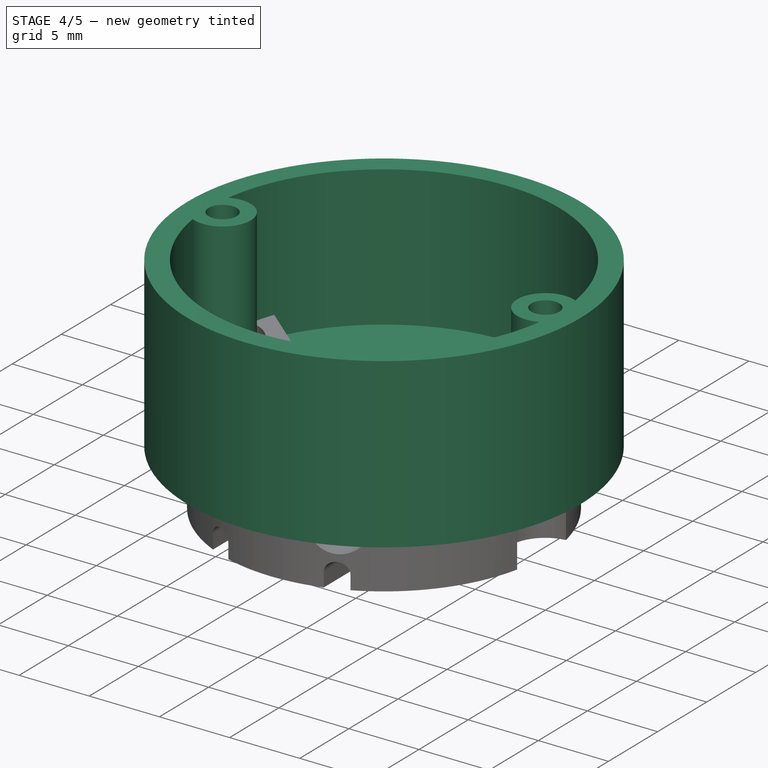
[diagram: stage 4 of 5 — iso view after this stage's code; geometry added in this stage tinted green]
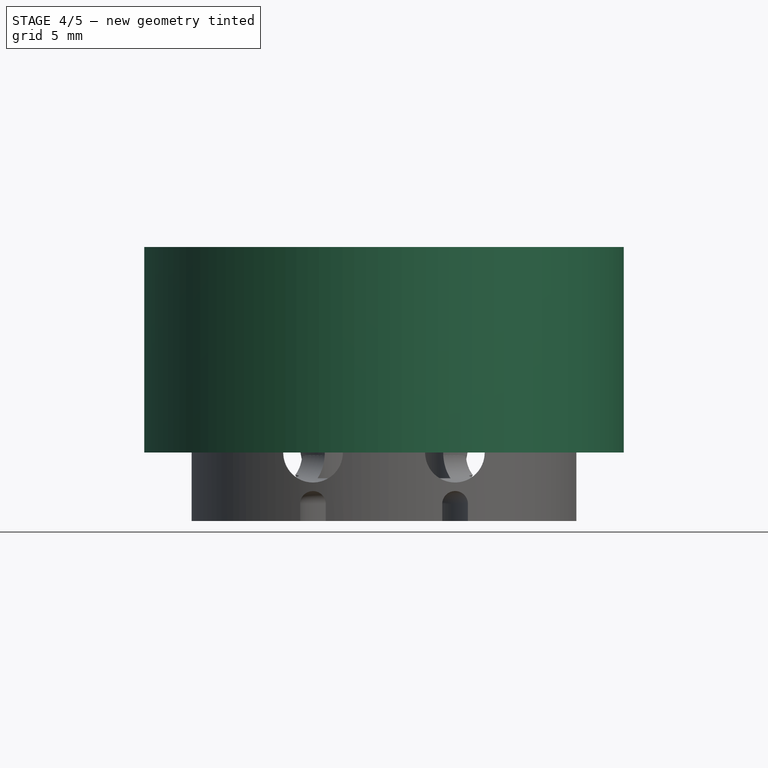
[diagram: stage 4 of 5 — front view after this stage's code; geometry added in this stage tinted green]
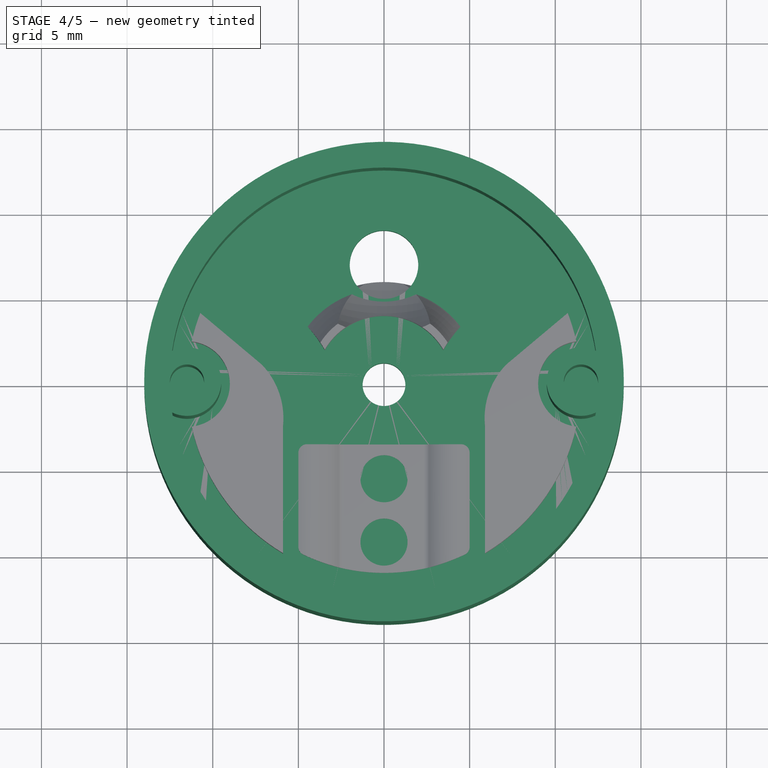
[diagram: stage 4 of 5 — top view after this stage's code; geometry added in this stage tinted green]
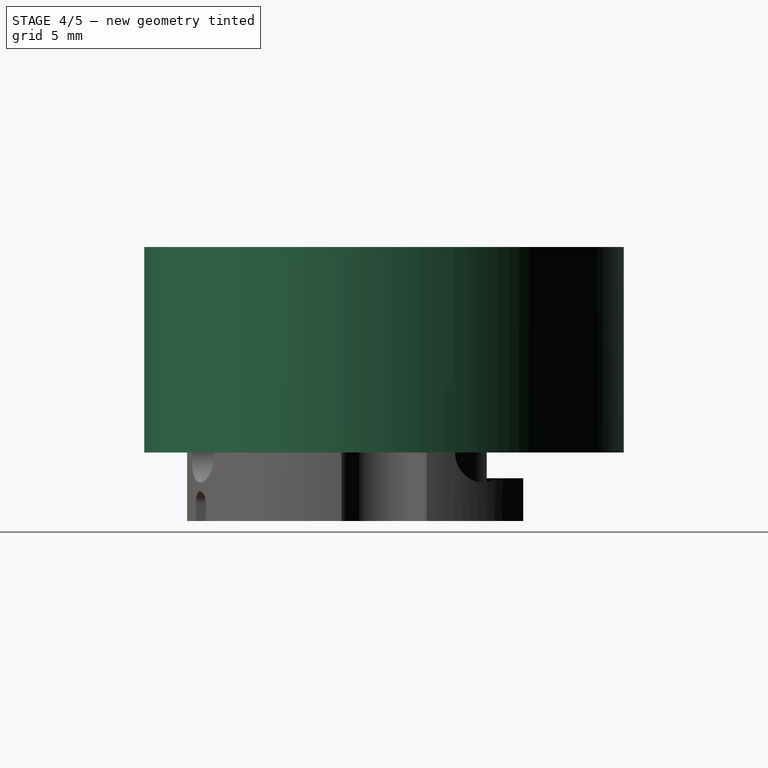
[diagram: stage 4 of 5 — right view after this stage's code; geometry added in this stage tinted green]
FEATURE [Sketcher::SketchObject] Sketch
  FullyConstrained = true
  MapMode = 5
  Placement = pos=(0,0,4) rot=(0,0,1;0rad)
  sketch-geometry (1):
    g0: Circle CenterX=0 CenterY=0 CenterZ=0 NormalX=0 NormalY=0 NormalZ=1 AngleXU=0 Radius=14
  constraints (2):
    c: Coincident(g0,g-1)
    c: Diameter(g0) = 28
FEATURE [PartDesign::Pad] Pad
  Direction = (0,0,1)
  Length = 12
  Length2 = 10
  Placement = pos=(0,0,4) rot=(0,0,1;0rad)
  Profile = -> Sketch
  ReferenceAxis = -> Sketch [N_Axis]
  Type = 0
FEATURE [Sketcher::SketchObject] Sketch001
  FullyConstrained = true
  MapMode = 5
  Placement = pos=(0,0,16) rot=(0,0,1;0rad)
  Support = -> [Pad]
  sketch-geometry (1):
    g0: Circle CenterX=0 CenterY=0 CenterZ=0 NormalX=0 NormalY=0 NormalZ=1 AngleXU=0 Radius=12.5
  constraints (2):
    c: Coincident(g0,g-1)
    c: Diameter(g0) = 25
FEATURE [PartDesign::Pocket] Pocket
  BaseFeature = -> Pad
  Direction = (0,0,-1)
  Length = 10
  Length2 = 5
  Placement = pos=(0,0,4) rot=(0,0,1;0rad)
  Profile = -> Sketch001
  ReferenceAxis = -> Sketch001 [N_Axis]
  Type = 0
FEATURE [Sketcher::SketchObject] Sketch002
  FullyConstrained = true
  MapMode = 5
  Placement = pos=(0,0,6) rot=(0,0,1;0rad)
  Support = -> [Pocket]
  sketch-geometry (2):
    g0: Circle CenterX=0 CenterY=0 CenterZ=0 NormalX=0 NormalY=0 NormalZ=1 AngleXU=0 Radius=1.25
    g1: Circle CenterX=0 CenterY=7 CenterZ=0 NormalX=0 NormalY=0 NormalZ=1 AngleXU=0 Radius=2
  constraints (5):
    c: Coincident(g0,g-1)
    c: PointOnObject(g1,g-2)
    c: Diameter(g1) = 4
    c: Diameter(g0) = 2.5
    c: DistanceY(g0,g1) = 7
FEATURE [PartDesign::Pocket] Pocket001
  BaseFeature = -> Pocket
  Direction = (0,0,-1)
  Length = 5
  Length2 = 5
  Placement = pos=(0,0,4) rot=(0,0,1;0rad)
  Profile = -> Sketch002
  ReferenceAxis = -> Sketch002 [N_Axis]
  Type = 0
FEATURE [Sketcher::SketchObject] Sketch003
  FullyConstrained = true
  MapMode = 5
  Placement = pos=(0,0,6) rot=(0,0,1;0rad)
  Support = -> [Pocket001]
  sketch-geometry (2):
    g0: Circle CenterX=-11.5 CenterY=0 CenterZ=0 NormalX=0 NormalY=0 NormalZ=1 AngleXU=0 Radius=2
    g1: Circle CenterX=11.5 CenterY=0 CenterZ=0 NormalX=0 NormalY=0 NormalZ=1 AngleXU=0 Radius=2
  constraints (6):
    c: PointOnObject(g0,g-1)
    c: Diameter(g0) = 4
    c: DistanceX(g0,g-1) = 11.5
    c: DistanceX(g-1,g1) = 11.5
    c: Diameter(g1) = 4
    c: PointOnObject(g1,g-1)
FEATURE [PartDesign::Pad] Pad001
  BaseFeature = -> Pocket001
  Direction = (0,0,1)
  Length = 10
  Length2 = 10
  Placement = pos=(0,0,4) rot=(0,0,1;0rad)
  Profile = -> Sketch003
  ReferenceAxis = -> Sketch003 [N_Axis]
  Type = 0
FEATURE [Sketcher::SketchObject] Sketch004
  ExternalGeometry = -> [Pad001]
  FullyConstrained = true
  MapMode = 5
  Placement = pos=(0,0,16) rot=(0,0,1;0rad)
  Support = -> [Pad001]
  sketch-geometry (2):
    g0: Circle CenterX=-11.5 CenterY=0 CenterZ=0 NormalX=0 NormalY=0 NormalZ=1 AngleXU=0 Radius=1
    g1: Circle CenterX=11.5 CenterY=0 CenterZ=0 NormalX=0 NormalY=0 NormalZ=1 AngleXU=0 Radius=1
  constraints (4):
    c: Coincident(g0,g-4)
    c: Coincident(g1,g-3)
    c: Diameter(g1) = 2
    c: Diameter(g0) = 2
FEATURE [PartDesign::Pocket] Pocket002
  BaseFeature = -> Pad001
  Direction = (0,0,-1)
  Length = 8
  Length2 = 5
  Placement = pos=(0,0,4) rot=(0,0,1;0rad)
  Profile = -> Sketch004
  ReferenceAxis = -> Sketch004 [N_Axis]
  Type = 0
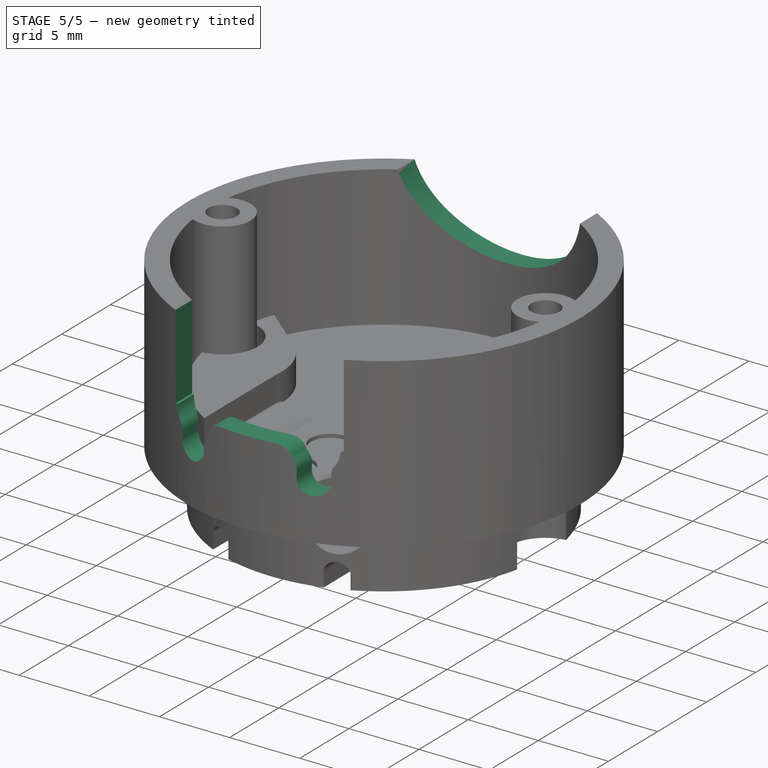
[diagram: stage 5 of 5 — iso view after this stage's code; geometry added in this stage tinted green]
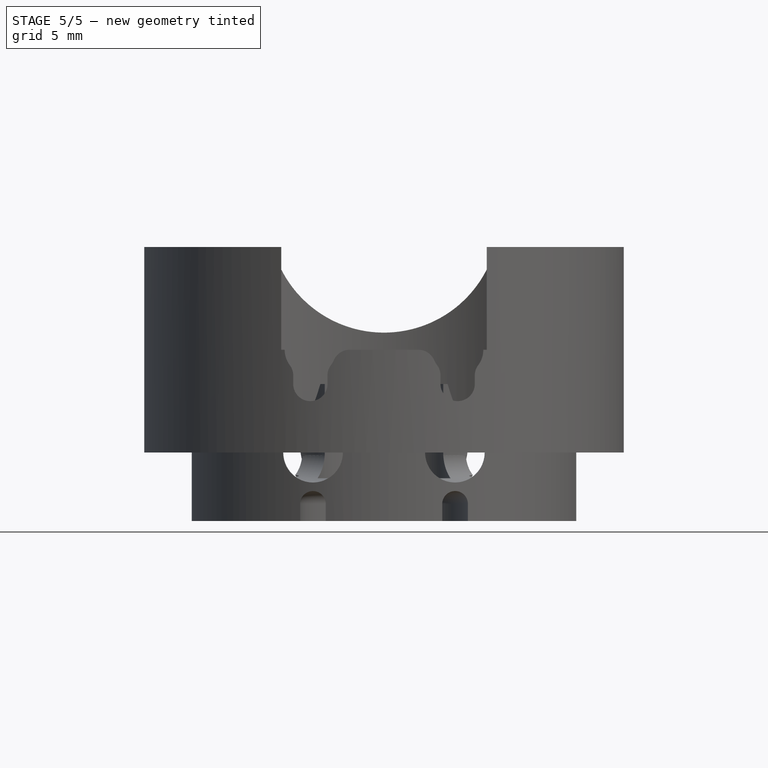
[diagram: stage 5 of 5 — front view after this stage's code; geometry added in this stage tinted green]
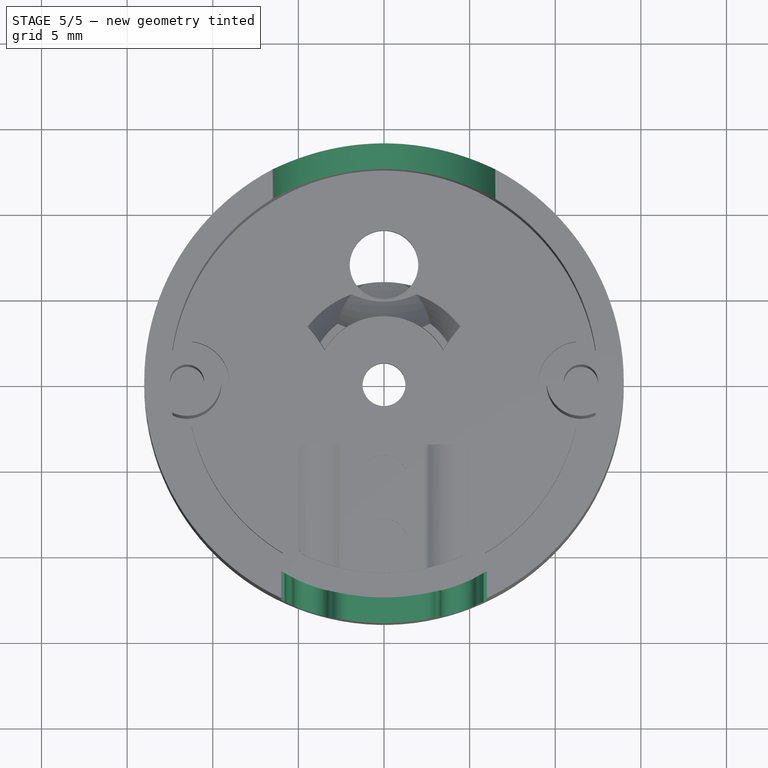
[diagram: stage 5 of 5 — top view after this stage's code; geometry added in this stage tinted green]
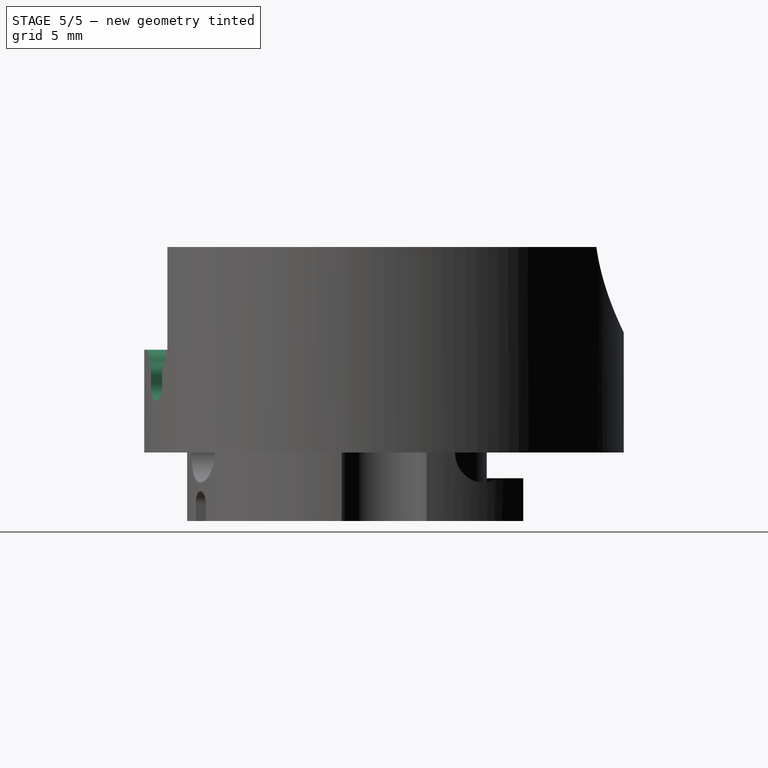
[diagram: stage 5 of 5 — right view after this stage's code; geometry added in this stage tinted green]
FEATURE [Sketcher::SketchObject] Sketch005
  ExternalGeometry = -> [Pocket002]
  FullyConstrained = false
  MapMode = 5
  Placement = pos=(0,0,0) rot=(1,0,0;1.5708rad)
  Support = -> [XZ_Plane]
  sketch-geometry (6):
    g0: Circle CenterX=0 CenterY=17.725 CenterZ=0 NormalX=0 NormalY=0 NormalZ=1 AngleXU=0 Radius=6.725
    g1: LineSegment StartX=-6.23151 StartY=11 StartZ=0 EndX=5.60437 EndY=11 EndZ=0
    g2: GeomPoint X=0 Y=11 Z=0
    g3: LineSegment StartX=-9.85609 StartY=16 StartZ=0 EndX=8.52308 EndY=16 EndZ=0
    g4: GeomPoint X=-6.5 Y=16 Z=0
    g5: GeomPoint X=6.5 Y=16 Z=0
  constraints (13):
    c: PointOnObject(g0,g-2)
    c: Horizontal(g1)
    c: PointOnObject(g2,g0)
    c: PointOnObject(g2,g-2)
    c: PointOnObject(g2,g1)
    c: DistanceY(g-3,g2) = 5
    c: Horizontal(g3)
    c: PointOnObject(g4,g0)
    c: PointOnObject(g5,g0)
    c: PointOnObject(g5,g3)
    c: PointOnObject(g4,g3)
    c: DistanceX(g4,g5) = 13
    c: DistanceY(g-3,g4) = 10
FEATURE [PartDesign::Pocket] Pocket003  label="Rounded hole"
  BaseFeature = -> Pocket002
  Direction = (0,1,2e-16)
  Length = 20
  Length2 = 5
  Placement = pos=(0,0,4) rot=(0,0,1;0rad)
  Profile = -> Sketch005
  ReferenceAxis = -> Sketch005 [N_Axis]
  Type = 0
FEATURE [Sketcher::SketchObject] Sketch006
  ExternalGeometry = -> [Pocket003]
  FullyConstrained = true
  MapMode = 5
  Placement = pos=(0,0,0) rot=(1,0,0;1.5708rad)
  Support = -> [XZ_Plane]
  sketch-geometry (4):
    g0: LineSegment StartX=-6 StartY=16 StartZ=0 EndX=6 EndY=16 EndZ=0
    g1: LineSegment StartX=6 StartY=16 StartZ=0 EndX=6 EndY=10 EndZ=0
    g2: LineSegment StartX=6 StartY=10 StartZ=0 EndX=-6 EndY=10 EndZ=0
    g3: LineSegment StartX=-6 StartY=10 StartZ=0 EndX=-6 EndY=16 EndZ=0
  constraints (12):
    c: Coincident(g0,g1)
    c: Coincident(g1,g2)
    c: Coincident(g2,g3)
    c: Coincident(g3,g0)
    c: Horizontal(g0)
    c: Horizontal(g2)
    c: Vertical(g1)
    c: Vertical(g3)
    c: DistanceX(g0,g0) = 12
    c: DistanceY(g1,g1) = 6
    c: DistanceX(g0,g-1) = 6
    c: DistanceY(g-3,g2) = 4
FEATURE [PartDesign::Pocket] Pocket004  label="Rectangle window"
  BaseFeature = -> Pocket003
  Direction = (0,1,2e-16)
  Length = 20
  Length2 = 5
  Placement = pos=(0,0,4) rot=(0,0,1;0rad)
  Profile = -> Sketch006
  ReferenceAxis = -> Sketch006 [N_Axis]
  Reversed = true
  Type = 0
FEATURE [Sketcher::SketchObject] Sketch007
  ExternalGeometry = -> [Pocket004]
  FullyConstrained = false
  MapMode = 5
  Placement = pos=(0,0,0) rot=(1,0,0;1.5708rad)
  Support = -> [XZ_Plane]
  sketch-geometry (8):
    g0: ArcOfCircle CenterX=4.3 CenterY=10 CenterZ=0 NormalX=0 NormalY=0 NormalZ=1 AngleXU=0 Radius=1.5 StartAngle=5.44212 EndAngle=10.2658
    g1: ArcOfCircle CenterX=4.3 CenterY=8 CenterZ=0 NormalX=0 NormalY=0 NormalZ=1 AngleXU=0 Radius=1 StartAngle=3.14159 EndAngle=6.28319
    g2: LineSegment StartX=3.3 StartY=8.88197 StartZ=0 EndX=3.3 EndY=8 EndZ=0
    g3: LineSegment StartX=5.3 StartY=8 StartZ=0 EndX=5.3 EndY=8.88197 EndZ=0
    g4: LineSegment StartX=0.528508 StartY=7 StartZ=0 EndX=4.79449 EndY=7 EndZ=0
    g5: GeomPoint X=4.3 Y=7 Z=0
    g6: LineSegment StartX=4.3 StartY=8 StartZ=0 EndX=4.3 EndY=7 EndZ=0
    g7: LineSegment StartX=-1.78487 StartY=8.88197 StartZ=0 EndX=6.78331 EndY=8.88197 EndZ=0
  constraints (20):
    c: Tangent(g2,g1) = -1.5708
    c: Tangent(g1,g3) = -1.5708
    c: Vertical(g2)
    c: Coincident(g0,g2)
    c: Coincident(g0,g3)
    c: Diameter(g0) = 3
    c: Horizontal(g4)
    c: PointOnObject(g5,g4)
    c: PointOnObject(g5,g1)
    c: Vertical(g3)
    c: Coincident(g6,g1)
    c: Coincident(g6,g5)
    c: Vertical(g6)
    c: Diameter(g1) = 2
    c: DistanceY(g5,g0) = 3
    c: Horizontal(g7)
    c: PointOnObject(g0,g7)
    c: PointOnObject(g0,g7)
    c: DistanceY(g-3,g4) = 1
    c: DistanceX(g-1,g1) = 4.3
FEATURE [PartDesign::Pocket] Pocket005  label="Keyhole 1"
  BaseFeature = -> Pocket004
  Direction = (0,1,2e-16)
  Length = 20
  Length2 = 5
  Placement = pos=(0,0,4) rot=(0,0,1;0rad)
  Profile = -> Sketch007
  ReferenceAxis = -> Sketch007 [N_Axis]
  Reversed = true
  Type = 0
FEATURE [PartDesign::Mirrored] Mirrored  label="Keyhole 2"
  BaseFeature = -> Pocket005
  MirrorPlane = -> Sketch007 [V_Axis]
  Originals = -> [Pocket005]
  Placement = pos=(0,0,4) rot=(0,0,1;0rad)
FEATURE [PartDesign::Fillet] Fillet
  Base = -> Mirrored [Edge39,Edge33,Edge44,Edge51,Edge42,Edge40]
  BaseFeature = -> Mirrored
  Placement = pos=(0,0,4) rot=(0,0,1;0rad)
  Radius = 1
  SupportTransform = false
  UseAllEdges = false
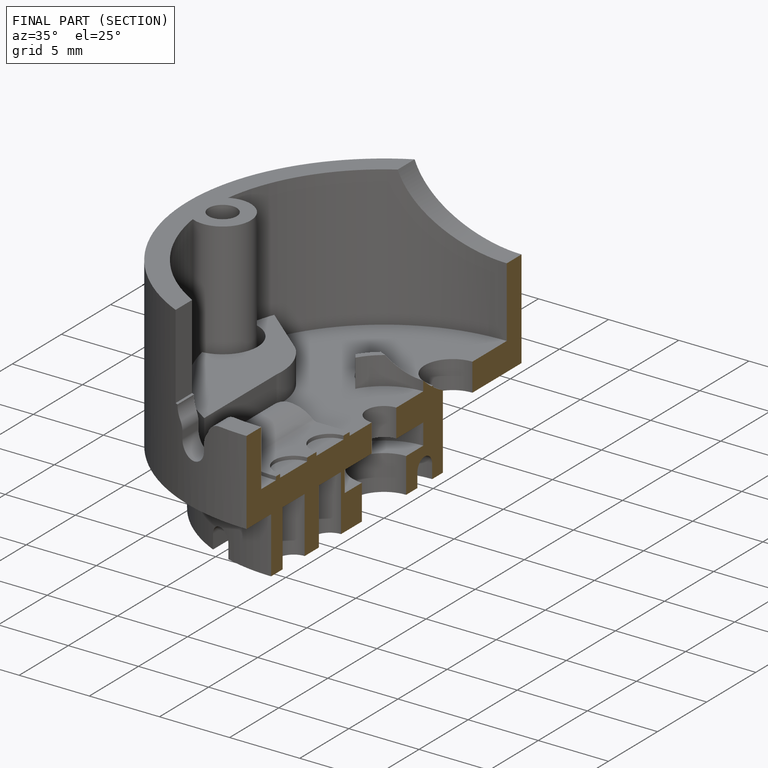
[diagram: finished part — half-section view (interior)]
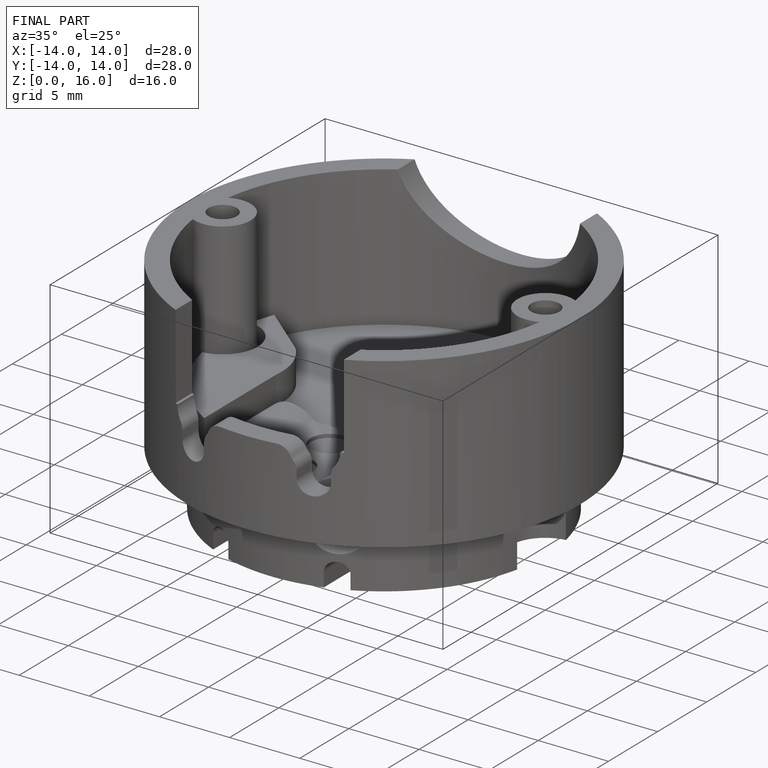
[diagram: finished part — iso view with bounding-box wireframe]
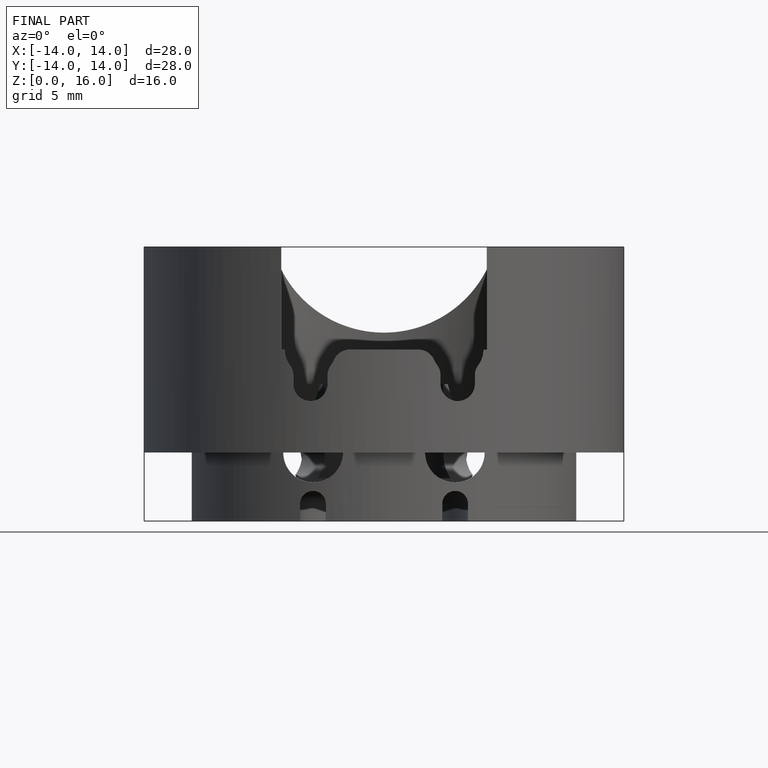
[diagram: finished part — front view with bounding-box wireframe]
